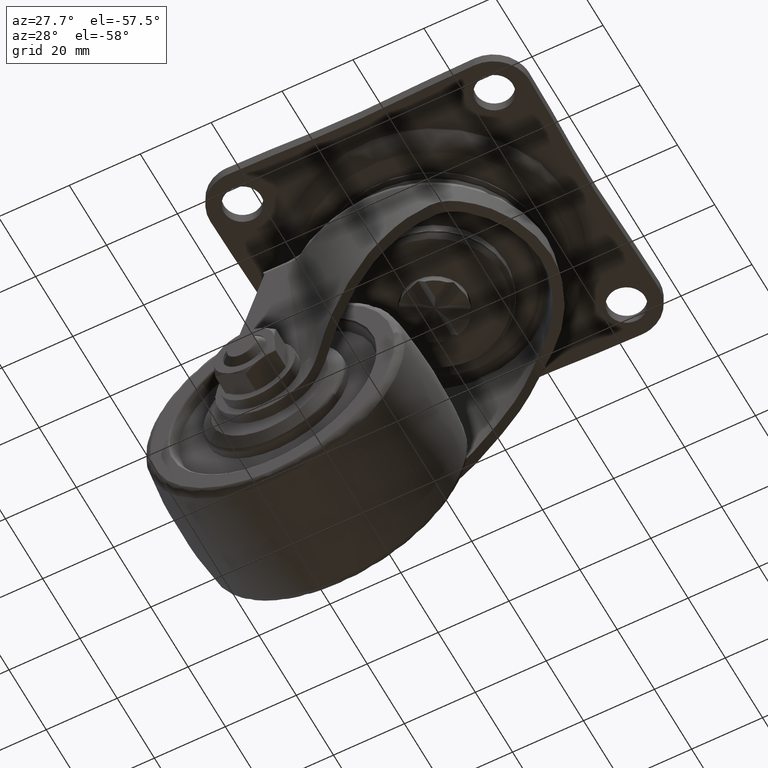
[diagram: clean part render]
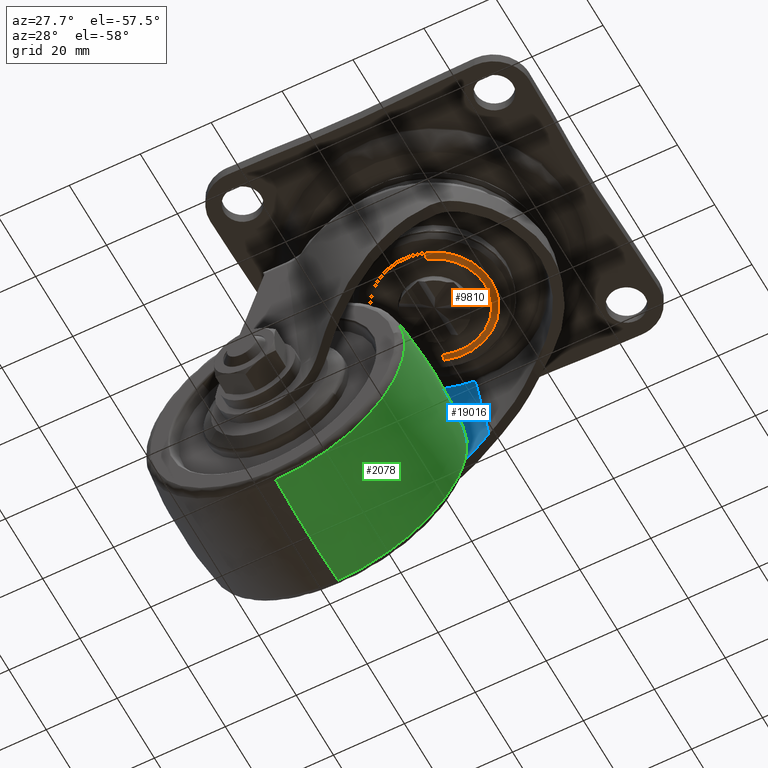
[diagram: same view with three faces highlighted in distinct colors, each labeled with its STEP entity id]
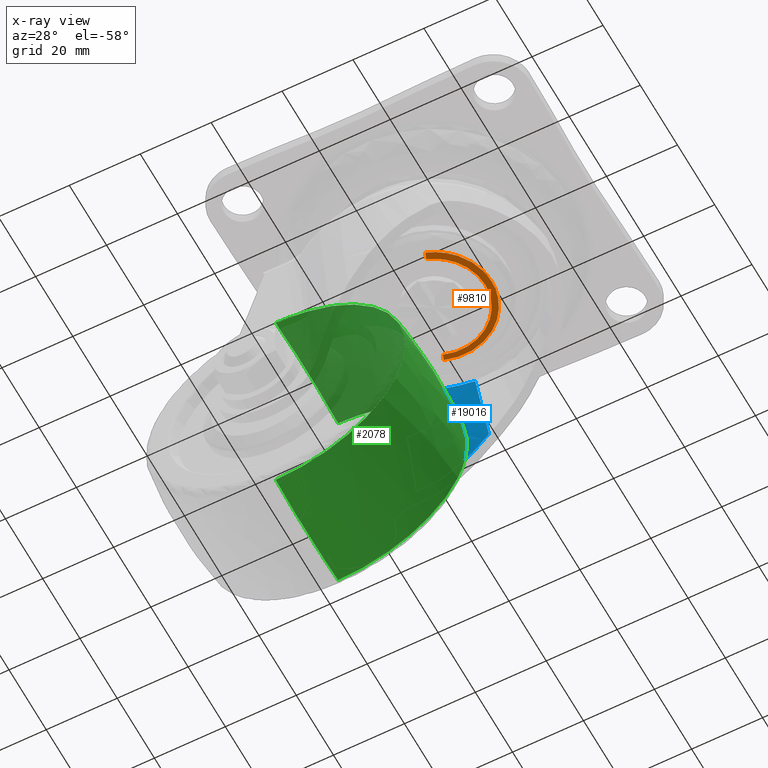
[diagram: x-ray of the same camera — body ghosted, the three highlighted faces saturated]
A machine part, auxiliary view with three faces highlighted in distinct colors.
The next image is the same camera in x-ray (body ghosted, the three faces saturated) — at least one of them is partly hidden behind the body in this view.
Their STEP definitions:

[orange] entity #9810 — the highlighted face is a freeform B-spline surface patch.
#9550=CARTESIAN_POINT('',(-4.747433835700864,13.451088585691821,-27.600000000000019));
#9551=VERTEX_POINT('',#9550);
#9565=CARTESIAN_POINT('',(14.264288000000020,0.0,-27.600000000000001));
#9566=VERTEX_POINT('',#9565);
#9567=CARTESIAN_POINT('',(-4.747433835700864,13.451088585691817,-27.600000000000019));
#9568=CARTESIAN_POINT('',(-2.443364364465019,14.264288000544710,-27.600000000000026));
#9569=CARTESIAN_POINT('',(-1.747151E-010,14.264288000495050,-27.600000000000019));
#9570=CARTESIAN_POINT('',(14.264287999927625,14.264288000205136,-27.600000000000009));
#9571=CARTESIAN_POINT('',(14.264288000000020,0.0,-27.600000000000001));
#9579=(BOUNDED_CURVE()B_SPLINE_CURVE(2,(#9567,#9568,#9569,#9570,#9571),.UNSPECIFIED.,.F.,.U.)B_SPLINE_CURVE_WITH_KNOTS((3,2,3),(0.193451214480088,0.250000000000000,0.500000000000000),.UNSPECIFIED.)CURVE()GEOMETRIC_REPRESENTATION_ITEM()RATIONAL_B_SPLINE_CURVE((0.897469272743701,0.933748976756325,1.0,0.707106781186548,1.0))REPRESENTATION_ITEM(''));
#9580=EDGE_CURVE('',#9551,#9566,#9579,.T.);
#9582=CARTESIAN_POINT('',(4.747433835700861,-13.451088585691821,-27.600000000000019));
#9583=VERTEX_POINT('',#9582);
#9584=CARTESIAN_POINT('',(14.264288000000020,0.0,-27.600000000000001));
#9585=CARTESIAN_POINT('',(14.264288000102351,-10.092205385565169,-27.600000000000009));
#9586=CARTESIAN_POINT('',(4.747433835700861,-13.451088585691817,-27.600000000000019));
#9594=(BOUNDED_CURVE()B_SPLINE_CURVE(2,(#9584,#9585,#9586),.UNSPECIFIED.,.F.,.U.)B_SPLINE_CURVE_WITH_KNOTS((3,3),(0.500000000000000,0.693451214480088),.UNSPECIFIED.)CURVE()GEOMETRIC_REPRESENTATION_ITEM()RATIONAL_B_SPLINE_CURVE((1.0,0.773357804430222,0.897469272743701))REPRESENTATION_ITEM(''));
#9595=EDGE_CURVE('',#9566,#9583,#9594,.T.);
#9650=CARTESIAN_POINT('',(5.351233631159203,-15.161857986778029,-27.293232872676771));
#9651=VERTEX_POINT('',#9650);
#9684=CARTESIAN_POINT('',(-5.351233631159202,15.161857986778029,-27.293232872676771));
#9685=VERTEX_POINT('',#9684);
#9699=CARTESIAN_POINT('',(-5.351233631159202,15.161857986778026,-27.293232872676771));
#9700=CARTESIAN_POINT('',(-5.057965721440269,14.330930632966949,-27.599999743155593));
#9701=CARTESIAN_POINT('',(-4.747433835700864,13.451088585691815,-27.600000000000023));
#9709=(BOUNDED_CURVE()B_SPLINE_CURVE(2,(#9699,#9700,#9701),.UNSPECIFIED.,.F.,.U.)B_SPLINE_CURVE_WITH_KNOTS((3,3),(-1.352994796676026,-0.664131268523343),.UNSPECIFIED.)CURVE()GEOMETRIC_REPRESENTATION_ITEM()RATIONAL_B_SPLINE_CURVE((0.950911154244378,0.937275360730326,0.950249593533099))REPRESENTATION_ITEM(''));
#9710=EDGE_CURVE('',#9685,#9551,#9709,.T.);
#9714=CARTESIAN_POINT('',(5.351233631159204,-15.161857986778026,-27.293232872676771));
#9715=CARTESIAN_POINT('',(5.057965721440269,-14.330930632966949,-27.599999743155593));
#9716=CARTESIAN_POINT('',(4.747433835700861,-13.451088585691828,-27.600000000000023));
#9724=(BOUNDED_CURVE()B_SPLINE_CURVE(2,(#9714,#9715,#9716),.UNSPECIFIED.,.F.,.U.)B_SPLINE_CURVE_WITH_KNOTS((3,3),(-1.352994796676026,-0.664131268523343),.UNSPECIFIED.)CURVE()GEOMETRIC_REPRESENTATION_ITEM()RATIONAL_B_SPLINE_CURVE((0.950911154244378,0.937275360730326,0.950249593533099))REPRESENTATION_ITEM(''));
#9725=EDGE_CURVE('',#9651,#9583,#9724,.T.);
#9730=CARTESIAN_POINT('',(-5.806159885467340,15.092969094500447,-27.262329317691346));
#9731=CARTESIAN_POINT('',(-5.594323256628059,15.167734818693873,-27.262329317691343));
#9732=CARTESIAN_POINT('',(9.863371670529954,20.623381285135711,-27.262329317691339));
#9733=CARTESIAN_POINT('',(15.243376477832834,5.380004807302880,-27.262329317691346));
#9734=CARTESIAN_POINT('',(20.623381285135711,-9.863371670529952,-27.262329317691339));
#9735=CARTESIAN_POINT('',(5.165686358315526,-15.319018136852565,-27.262329317691350));
#9736=CARTESIAN_POINT('',(4.953849729806269,-15.393783860929517,-27.262329317691350));
#9737=CARTESIAN_POINT('',(-5.459592228020251,14.192075036089365,-27.616346766919001));
#9738=CARTESIAN_POINT('',(-5.260400053633917,14.262378020295918,-27.616346766919005));
#9739=CARTESIAN_POINT('',(9.274630457436338,19.392378852957204,-27.616346766918987));
#9740=CARTESIAN_POINT('',(14.333504655196769,5.058874197760433,-27.616346766918998));
#9741=CARTESIAN_POINT('',(19.392378852957204,-9.274630457436336,-27.616346766918987));
#9742=CARTESIAN_POINT('',(4.857348342204608,-14.404631289985522,-27.616346766918998));
#9743=CARTESIAN_POINT('',(4.658156168128598,-14.474934274082544,-27.616346766919005));
#9744=CARTESIAN_POINT('',(-5.090484879985204,13.232589609174088,-27.599235181027730));
#9745=CARTESIAN_POINT('',(-4.904759516336077,13.298139610561476,-27.599235181027737));
#9746=CARTESIAN_POINT('',(8.647599333283909,18.081315822687348,-27.599235181027726));
#9747=CARTESIAN_POINT('',(13.364457577985631,4.716858244701722,-27.599235181027730));
#9748=CARTESIAN_POINT('',(18.081315822687348,-8.647599333283907,-27.599235181027726));
#9749=CARTESIAN_POINT('',(4.528956973363550,-13.430775545305261,-27.599235181027723));
#9750=CARTESIAN_POINT('',(4.343231610003767,-13.496325546590525,-27.599235181027730));
#9758=(BOUNDED_SURFACE()B_SPLINE_SURFACE(2,2,((#9730,#9737,#9744),(#9731,#9738,#9745),(#9732,#9739,#9746),(#9733,#9740,#9747),(#9734,#9741,#9748),(#9735,#9742,#9749),(#9736,#9743,#9750)),.UNSPECIFIED.,.F.,.F.,.U.)B_SPLINE_SURFACE_WITH_KNOTS((3,1,2,1,3),(3,3),(0.0,0.535658676491489,27.318592473378430,54.101526270265360,54.637184945907563),(0.0,2.038796778357210),.UNSPECIFIED.)GEOMETRIC_REPRESENTATION_ITEM()RATIONAL_B_SPLINE_SURFACE(((0.963497116545294,0.946844312000922,0.962760940193479),(0.957918439372434,0.941362055065320,0.957186525503752),(0.673405903844903,0.661766951633022,0.672891376615842),(0.952339762199573,0.935879798129719,0.951612110814026),(0.673405903844903,0.661766951633022,0.672891376615842),(0.957918439363589,0.941362055056628,0.957186525494914),(0.963497116527604,0.946844311983537,0.962760940175802)))REPRESENTATION_ITEM('')SURFACE());
#9759=CARTESIAN_POINT('',(16.078483549394999,0.0,-27.293232359085899));
#9760=VERTEX_POINT('',#9759);
#9761=CARTESIAN_POINT('',(12.127218447018290,-10.556903298550210,-27.293232511925108));
#9762=VERTEX_POINT('',#9761);
#9763=CARTESIAN_POINT('',(16.078483549394999,0.0,-27.293232359085899));
#9764=CARTESIAN_POINT('',(16.078483545612123,-6.017896514315798,-27.293232420644085));
#9765=CARTESIAN_POINT('',(12.127218447018283,-10.556903298550207,-27.293232511925108));
#9773=(BOUNDED_CURVE()B_SPLINE_CURVE(2,(#9763,#9764,#9765),.UNSPECIFIED.,.F.,.U.)B_SPLINE_CURVE_WITH_KNOTS((3,3),(0.500000000000000,0.614567192216151),.UNSPECIFIED.)CURVE()GEOMETRIC_REPRESENTATION_ITEM()RATIONAL_B_SPLINE_CURVE((1.0,0.865776185205568,0.854573535127446))REPRESENTATION_ITEM(''));
#9774=EDGE_CURVE('',#9760,#9762,#9773,.T.);
#9775=ORIENTED_EDGE('',*,*,#9774,.T.);
#9776=CARTESIAN_POINT('',(12.127218447018283,-10.556903298550207,-27.293232511925108));
#9777=CARTESIAN_POINT('',(9.345847459061343,-13.751996954325056,-27.293232702762182));
#9778=CARTESIAN_POINT('',(5.351233631159203,-15.161857986778033,-27.293232872676771));
#9786=(BOUNDED_CURVE()B_SPLINE_CURVE(2,(#9776,#9777,#9778),.UNSPECIFIED.,.F.,.U.)B_SPLINE_CURVE_WITH_KNOTS((3,3),(0.614567192216151,0.693451214482208),.UNSPECIFIED.)CURVE()GEOMETRIC_REPRESENTATION_ITEM()RATIONAL_B_SPLINE_CURVE((0.854573535127446,0.846860069508649,0.897469272746422))REPRESENTATION_ITEM(''));
#9787=EDGE_CURVE('',#9762,#9651,#9786,.T.);
#9788=ORIENTED_EDGE('',*,*,#9787,.T.);
#9789=ORIENTED_EDGE('',*,*,#9725,.T.);
#9790=ORIENTED_EDGE('',*,*,#9595,.F.);
#9791=ORIENTED_EDGE('',*,*,#9580,.F.);
#9792=ORIENTED_EDGE('',*,*,#9710,.F.);
#9793=CARTESIAN_POINT('',(-5.351233631159201,15.161857986778033,-27.293232872676771));
#9794=CARTESIAN_POINT('',(-2.754122360007707,16.078483707471943,-27.293232841555209));
#9795=CARTESIAN_POINT('',(-0.000000050705177,16.078483693059940,-27.293232797568098));
#9796=CARTESIAN_POINT('',(16.078483528385114,16.078483608923118,-27.293232540772660));
#9797=CARTESIAN_POINT('',(16.078483549394999,0.0,-27.293232359085899));
#9805=(BOUNDED_CURVE()B_SPLINE_CURVE(2,(#9793,#9794,#9795,#9796,#9797),.UNSPECIFIED.,.F.,.U.)B_SPLINE_CURVE_WITH_KNOTS((3,2,3),(0.193451214482208,0.250000000000000,0.500000000000000),.UNSPECIFIED.)CURVE()GEOMETRIC_REPRESENTATION_ITEM()RATIONAL_B_SPLINE_CURVE((0.897469272746422,0.933748976758810,1.0,0.707106781186547,1.0))REPRESENTATION_ITEM(''));
#9806=EDGE_CURVE('',#9685,#9760,#9805,.T.);
#9807=ORIENTED_EDGE('',*,*,#9806,.T.);
#9808=EDGE_LOOP('',(#9775,#9788,#9789,#9790,#9791,#9792,#9807));
#9809=FACE_OUTER_BOUND('',#9808,.T.);
#9810=ADVANCED_FACE('',(#9809),#9758,.T.);

[blue] entity #19016 — the highlighted face is a freeform B-spline surface patch.
#14980=CARTESIAN_POINT('',(-3.575089953283140,28.661007447844799,-19.564466420439750));
#14981=VERTEX_POINT('',#14980);
#14987=CARTESIAN_POINT('',(-0.219596969789601,29.609593689228600,-45.314520287188003));
#14988=VERTEX_POINT('',#14987);
#14989=CARTESIAN_POINT('',(-0.219596969789601,29.609593689228600,-45.314520287188003));
#14990=CARTESIAN_POINT('',(-1.322937700204926,29.293325575326129,-36.729195501701710));
#14991=CARTESIAN_POINT('',(-2.440679761526742,28.977126537302411,-28.145745830486291));
#14992=CARTESIAN_POINT('',(-3.575089953283066,28.661007447844820,-19.564466420439739));
#14993=QUASI_UNIFORM_CURVE('',3,(#14989,#14990,#14991,#14992),.UNSPECIFIED.,.F.,.U.);
#14994=EDGE_CURVE('',#14988,#14981,#14993,.T.);
#15765=CARTESIAN_POINT('',(-1.599720807978030,29.627173840747300,-46.823249044543793));
#15766=VERTEX_POINT('',#15765);
#15772=CARTESIAN_POINT('',(-17.429935018583599,23.539747381781449,-67.755045902970309));
#15773=VERTEX_POINT('',#15772);
#15774=CARTESIAN_POINT('',(-17.429935018583588,23.539747381781432,-67.755045902970295));
#15775=CARTESIAN_POINT('',(-16.822401999141690,24.062925591685421,-66.951723941359433));
#15776=CARTESIAN_POINT('',(-16.204966526784901,24.547593219102829,-66.135308275133710));
#15777=CARTESIAN_POINT('',(-14.951886815981959,25.446114687243661,-64.478400059245004));
#15778=CARTESIAN_POINT('',(-14.316237297290501,25.859947993123370,-63.637900527678291));
#15779=CARTESIAN_POINT('',(-13.027789956149940,26.620924950103419,-61.934226797371167));
#15780=CARTESIAN_POINT('',(-12.374989099746010,26.968056802170850,-61.071048586926928));
#15781=CARTESIAN_POINT('',(-11.548684312881321,27.361900523537049,-59.978451541119682));
#15782=CARTESIAN_POINT('',(-11.382907299732439,27.438662329862900,-59.759249767502368));
#15783=CARTESIAN_POINT('',(-11.050328242389391,27.588199602669260,-59.319490853689018));
#15784=CARTESIAN_POINT('',(-10.883399189595480,27.661027095514530,-59.098765773983189));
#15785=CARTESIAN_POINT('',(-10.382431373522630,27.873003851744809,-58.436351656835697));
#15786=CARTESIAN_POINT('',(-10.048010036117461,28.005756916586051,-57.994156753560077));
#15787=CARTESIAN_POINT('',(-9.043464622190310,28.379230476537121,-56.665877686219098));
#15788=CARTESIAN_POINT('',(-8.372061437367137,28.595209697584099,-55.778102197144626));
#15789=CARTESIAN_POINT('',(-7.026030484632224,28.964796334367691,-53.998287453357932));
#15790=CARTESIAN_POINT('',(-6.351402230545353,29.118394346215460,-53.106247555791512));
#15791=CARTESIAN_POINT('',(-4.999039951415642,29.365516699584521,-51.318061096597937));
#15792=CARTESIAN_POINT('',(-4.321305659734586,29.459035883630460,-50.421914182403363));
#15793=CARTESIAN_POINT('',(-2.962793575004790,29.587205036834110,-48.625596027087752));
#15794=CARTESIAN_POINT('',(-2.282015677118168,29.621852978154941,-47.725424647342898));
#15795=CARTESIAN_POINT('',(-1.599721584834276,29.627173785033449,-46.823248451039177));
#15796=B_SPLINE_CURVE_WITH_KNOTS('',3,(#15774,#15775,#15776,#15777,#15778,#15779,#15780,#15781,#15782,#15783,#15784,#15785,#15786,#15787,#15788,#15789,#15790,#15791,#15792,#15793,#15794,#15795),.UNSPECIFIED.,.F.,.U.,(4,2,2,2,2,2,2,2,2,2,4),(0.0,0.125000000000002,0.250000000000003,0.375000000000005,0.406250000000005,0.437500000000005,0.500000000000005,0.625000000000003,0.750000000000002,0.875000000000001,1.0),.UNSPECIFIED.);
#15797=EDGE_CURVE('',#15773,#15766,#15796,.T.);
#16156=CARTESIAN_POINT('',(-1.599720807978030,29.627173840747300,-46.823249044543793));
#16157=CARTESIAN_POINT('',(-1.141257313517278,29.633865395991950,-46.318749910126890));
#16158=CARTESIAN_POINT('',(-0.681215184867048,29.628061433381902,-45.815840447652221));
#16159=CARTESIAN_POINT('',(-0.219596969789593,29.609593689228600,-45.314520287188103));
#16160=QUASI_UNIFORM_CURVE('',3,(#16156,#16157,#16158,#16159),.UNSPECIFIED.,.F.,.U.);
#16161=EDGE_CURVE('',#15766,#14988,#16160,.T.);
#18209=CARTESIAN_POINT('',(-18.078648520322201,25.298978244452201,-18.424279935094699));
#18210=VERTEX_POINT('',#18209);
#18211=CARTESIAN_POINT('',(-21.924907989601099,23.030941852966400,-19.428123722989600));
#18212=VERTEX_POINT('',#18211);
#18213=CARTESIAN_POINT('',(-18.078648520322201,25.298978244452201,-18.424279935094699));
#18214=CARTESIAN_POINT('',(-18.252217608451922,25.214219199153501,-18.422162608564680));
#18215=CARTESIAN_POINT('',(-18.423497378420461,25.128366942324639,-18.431174882405841));
#18216=CARTESIAN_POINT('',(-18.762374096405068,24.954231001811358,-18.464764640648941));
#18217=CARTESIAN_POINT('',(-18.929961110473410,24.865950088171321,-18.489416541363351));
#18218=CARTESIAN_POINT('',(-19.261979689470369,24.686811178328480,-18.550339812817931));
#18219=CARTESIAN_POINT('',(-19.426407582504989,24.595954206413658,-18.586638691495072));
#18220=CARTESIAN_POINT('',(-19.752488738671410,24.411554995602369,-18.667996225882028));
#18221=CARTESIAN_POINT('',(-19.914287409794309,24.317922812657269,-18.713117339198071));
#18222=CARTESIAN_POINT('',(-20.393938579836529,24.034088900200850,-18.857552924411362));
#18223=CARTESIAN_POINT('',(-20.706720170464351,23.840603827799349,-18.965958222114111));
#18224=CARTESIAN_POINT('',(-21.168514851329899,23.542864434007718,-19.135915196976921));
#18225=CARTESIAN_POINT('',(-21.321205829208299,23.442367556247969,-19.193826283713310));
#18226=CARTESIAN_POINT('',(-21.548701690365149,23.289609711276690,-19.281424484728571));
#18227=CARTESIAN_POINT('',(-21.662064006177850,23.212727601272800,-19.325407692653620));
#18228=CARTESIAN_POINT('',(-21.774904720060530,23.135064146810301,-19.369457756089570));
#18229=CARTESIAN_POINT('',(-21.850022114977829,23.083111834031008,-19.398816321829379));
#18230=CARTESIAN_POINT('',(-21.887630099829970,23.056974543538882,-19.413530559669560));
#18231=CARTESIAN_POINT('',(-21.924907989600950,23.030941852966500,-19.428123722989952));
#18232=B_SPLINE_CURVE_WITH_KNOTS('',3,(#18213,#18214,#18215,#18216,#18217,#18218,#18219,#18220,#18221,#18222,#18223,#18224,#18225,#18226,#18227,#18228,#18229,#18230,#18231),.UNSPECIFIED.,.F.,.U.,(4,2,2,2,2,2,2,1,2,4),(0.0,0.124999999999999,0.249999999999998,0.374999999999998,0.499999999999997,0.749999999999996,0.874999999999996,0.937499999999997,0.968749999999999,1.0),.UNSPECIFIED.);
#18233=EDGE_CURVE('',#18210,#18212,#18232,.T.);
#18707=CARTESIAN_POINT('',(-11.592624137732519,27.658076881106801,-18.503401348059249));
#18708=VERTEX_POINT('',#18707);
#18709=CARTESIAN_POINT('',(-3.575089953283140,28.661007447844799,-19.564466420439750));
#18710=CARTESIAN_POINT('',(-4.246697100788269,28.656483683896820,-19.441665603541139));
#18711=CARTESIAN_POINT('',(-4.916510462934718,28.632305856232009,-19.319894103469089));
#18712=CARTESIAN_POINT('',(-6.254260595527979,28.545054176117809,-19.087905564408938));
#18713=CARTESIAN_POINT('',(-6.922152401863757,28.481984970449979,-18.977598467488431));
#18714=CARTESIAN_POINT('',(-8.257714900557795,28.316251503038949,-18.780026019490371));
#18715=CARTESIAN_POINT('',(-8.925351418236257,28.213609489229729,-18.692527046036780));
#18716=CARTESIAN_POINT('',(-9.928570053527515,28.028334456027750,-18.591973634100071));
#18717=CARTESIAN_POINT('',(-10.262387919961631,27.961504005410490,-18.563733598483282));
#18718=CARTESIAN_POINT('',(-10.928471340239451,27.817590976199629,-18.521505281002909));
#18719=CARTESIAN_POINT('',(-11.260823391377841,27.740494606609399,-18.507448903591850));
#18720=CARTESIAN_POINT('',(-11.592624137732519,27.658076881106801,-18.503401348059249));
#18721=B_SPLINE_CURVE_WITH_KNOTS('',3,(#18709,#18710,#18711,#18712,#18713,#18714,#18715,#18716,#18717,#18718,#18719,#18720),.UNSPECIFIED.,.F.,.U.,(4,2,2,2,2,4),(0.0,0.250000000000000,0.500000000000000,0.750000000000000,0.875000000000000,1.0),.UNSPECIFIED.);
#18722=EDGE_CURVE('',#14981,#18708,#18721,.T.);
#18817=CARTESIAN_POINT('',(-17.429935018583599,23.539747381781449,-67.755045902970309));
#18818=CARTESIAN_POINT('',(-18.916782713865590,23.370098513076709,-51.645006810100860));
#18819=CARTESIAN_POINT('',(-20.414206728277701,23.200492371869011,-35.535944475732492));
#18820=CARTESIAN_POINT('',(-21.924907989601060,23.030941852966411,-19.428123722989589));
#18821=QUASI_UNIFORM_CURVE('',3,(#18817,#18818,#18819,#18820),.UNSPECIFIED.,.F.,.U.);
#18822=EDGE_CURVE('',#15773,#18212,#18821,.T.);
#18955=CARTESIAN_POINT('',(-3.871473738302009,28.525805014865156,-15.894299407412056));
#18956=CARTESIAN_POINT('',(-3.865020251700303,28.527590012653455,-15.942754452609135));
#18957=CARTESIAN_POINT('',(-3.858566768168396,28.529375009592666,-15.991209474757071));
#18958=CARTESIAN_POINT('',(-1.802352070047411,29.098112331745387,-31.429991993649981));
#18959=CARTESIAN_POINT('',(0.327618053199337,29.702823070719560,-47.845298714049250));
#18960=CARTESIAN_POINT('',(2.542988447033657,30.348515509132593,-65.373083057490106));
#18961=CARTESIAN_POINT('',(2.551706741230308,30.351056545455133,-65.442061310944638));
#18962=CARTESIAN_POINT('',(2.560425029439048,30.353597580032467,-65.511039517023434));
#18963=CARTESIAN_POINT('',(-3.964704316674849,28.526260574331950,-15.906665895871818));
#18964=CARTESIAN_POINT('',(-3.958261728934576,28.528045529644423,-15.955119788033057));
#18965=CARTESIAN_POINT('',(-3.951819142727382,28.529830484532141,-16.003573668664149));
#18966=CARTESIAN_POINT('',(-1.898998572875014,29.098576014969396,-31.442579007499926));
#18967=CARTESIAN_POINT('',(0.227536271614488,29.703294964860302,-47.858108618761477));
#18968=CARTESIAN_POINT('',(2.439401485818084,30.348995703441570,-65.386118276412446));
#18969=CARTESIAN_POINT('',(2.448106366893537,30.351536883665208,-65.455100436165893));
#18970=CARTESIAN_POINT('',(2.456811244977760,30.354078063015617,-65.524082572215164));
#18971=CARTESIAN_POINT('',(-14.410412994361531,28.577302212797392,-17.292227779870444));
#18972=CARTESIAN_POINT('',(-14.405331901657865,28.579083094798360,-17.340571099129878));
#18973=CARTESIAN_POINT('',(-14.400250674826843,28.580864023809891,-17.388915694524556));
#18974=CARTESIAN_POINT('',(-12.774282861455358,29.150752624918031,-32.858950525945843));
#18975=CARTESIAN_POINT('',(-11.086334995705418,29.756640833363086,-49.306220458552417));
#18976=CARTESIAN_POINT('',(-9.329238663693056,30.403551160594041,-66.867065289114194));
#18977=CARTESIAN_POINT('',(-9.322289152294658,30.406109762880622,-66.936520383346689));
#18978=CARTESIAN_POINT('',(-9.315339372306362,30.408668464053981,-67.005978161931466));
#18979=CARTESIAN_POINT('',(-22.781230368975372,22.477693536719439,-18.627736085202621));
#18980=CARTESIAN_POINT('',(-22.776749102976549,22.478066161910455,-18.676325152947079));
#18981=CARTESIAN_POINT('',(-22.772267819063220,22.478438788591092,-18.724914414933192));
#18982=CARTESIAN_POINT('',(-21.343415667377478,22.597250371320321,-34.217543956051777));
#18983=CARTESIAN_POINT('',(-19.834585944424937,22.722909829012206,-50.686139513837908));
#18984=CARTESIAN_POINT('',(-18.234733851358911,22.856310192009051,-68.266711237317850));
#18985=CARTESIAN_POINT('',(-18.228432649543429,22.856835604710096,-68.335954344816003));
#18986=CARTESIAN_POINT('',(-18.222131411273018,22.857361020450867,-68.405197852912579));
#18994=(BOUNDED_SURFACE()B_SPLINE_SURFACE(3,2,((#18955,#18963,#18971,#18979),(#18956,#18964,#18972,#18980),(#18957,#18965,#18973,#18981),(#18958,#18966,#18974,#18982),(#18959,#18967,#18975,#18983),(#18960,#18968,#18976,#18984),(#18961,#18969,#18977,#18985),(#18962,#18970,#18978,#18986)),.UNSPECIFIED.,.F.,.F.,.U.)B_SPLINE_SURFACE_WITH_KNOTS((4,2,2,4),(3,1,3),(0.0,0.166570354880918,53.076830373806501,53.285892683291451),(0.0,0.216981860015776,22.997601776751232),.UNSPECIFIED.)GEOMETRIC_REPRESENTATION_ITEM()RATIONAL_B_SPLINE_SURFACE(((1.001010944524691,1.000505472262345,0.946931179011435,0.991584036948839),(1.001011182605877,1.000505591302938,0.946918681107211,0.991582054958318),(1.001011420687063,1.000505710343532,0.946906183202987,0.991580072967796),(1.001087284094680,1.000543642047340,0.942923787037737,0.990948521364473),(1.001168435680467,1.000584217840233,0.938663791683035,0.990272946463138),(1.001255800436902,1.000627900218451,0.934077640309989,0.989545647838756),(1.001256144279349,1.000628072139674,0.934059590542867,0.989542785401446),(1.001256488121795,1.000628244060898,0.934041540775746,0.989539922964136)))REPRESENTATION_ITEM('')SURFACE());
#18995=ORIENTED_EDGE('',*,*,#14994,.T.);
#18996=ORIENTED_EDGE('',*,*,#18722,.T.);
#18997=CARTESIAN_POINT('',(-11.592624137732519,27.658076881106780,-18.503401348059271));
#18998=CARTESIAN_POINT('',(-12.148643863446990,27.519964228765200,-18.496618600456159));
#18999=CARTESIAN_POINT('',(-12.702132667304470,27.367031755540911,-18.489866726945049));
#19000=CARTESIAN_POINT('',(-13.528508457993080,27.115045939485150,-18.479785972334490));
#19001=CARTESIAN_POINT('',(-13.803323802290681,27.027284099855049,-18.476433567677550));
#19002=CARTESIAN_POINT('',(-14.351653433585071,26.844142075483639,-18.469744629641060));
#19003=CARTESIAN_POINT('',(-14.625503215497289,26.748634288754939,-18.466404003641699));
#19004=CARTESIAN_POINT('',(-15.985292183020089,26.254088697330499,-18.449816273146450));
#19005=CARTESIAN_POINT('',(-17.045512312973571,25.803489961121581,-18.436882909072061));
#19006=CARTESIAN_POINT('',(-18.078648520322179,25.298978244452151,-18.424279935094710));
#19007=B_SPLINE_CURVE_WITH_KNOTS('',3,(#18997,#18998,#18999,#19000,#19001,#19002,#19003,#19004,#19005,#19006),.UNSPECIFIED.,.F.,.U.,(4,2,2,2,4),(0.0,0.250000000000001,0.375000000000001,0.500000000000001,1.0),.UNSPECIFIED.);
#19008=EDGE_CURVE('',#18708,#18210,#19007,.T.);
#19009=ORIENTED_EDGE('',*,*,#19008,.T.);
#19010=ORIENTED_EDGE('',*,*,#18233,.T.);
#19011=ORIENTED_EDGE('',*,*,#18822,.F.);
#19012=ORIENTED_EDGE('',*,*,#15797,.T.);
#19013=ORIENTED_EDGE('',*,*,#16161,.T.);
#19014=EDGE_LOOP('',(#18995,#18996,#19009,#19010,#19011,#19012,#19013));
#19015=FACE_OUTER_BOUND('',#19014,.T.);
#19016=ADVANCED_FACE('',(#19015),#18994,.F.);

[green] entity #2078 — the highlighted face is a freeform B-spline surface patch.
#1856=CARTESIAN_POINT('',(-36.0,-16.757817703415181,-104.915381616113090));
#1857=VERTEX_POINT('',#1856);
#1871=CARTESIAN_POINT('',(0.128236174160229,-16.757816205020440,-63.935942379738350));
#1872=VERTEX_POINT('',#1871);
#1873=CARTESIAN_POINT('',(-36.0,-16.757817703415181,-104.915381616113090));
#1874=CARTESIAN_POINT('',(0.415382461924509,-16.757817689363176,-104.915381629851950));
#1875=CARTESIAN_POINT('',(0.415382338567376,-16.757816370239649,-68.499999790680207));
#1876=CARTESIAN_POINT('',(0.415382330806402,-16.757816287247433,-66.208938233503190));
#1877=CARTESIAN_POINT('',(0.128236174160229,-16.757816205020443,-63.935942379738350));
#1885=(BOUNDED_CURVE()B_SPLINE_CURVE(2,(#1873,#1874,#1875,#1876,#1877),.UNSPECIFIED.,.F.,.U.)B_SPLINE_CURVE_WITH_KNOTS((3,2,3),(0.0,0.250000000000000,0.271678742834652),.UNSPECIFIED.)CURVE()GEOMETRIC_REPRESENTATION_ITEM()RATIONAL_B_SPLINE_CURVE((1.0,0.707106781186547,1.0,0.974601772925319,0.953608358916302))REPRESENTATION_ITEM(''));
#1886=EDGE_CURVE('',#1857,#1872,#1885,.T.);
#1948=CARTESIAN_POINT('',(-36.0,-16.757815097045871,-32.084617906602432));
#1949=VERTEX_POINT('',#1948);
#1969=CARTESIAN_POINT('',(0.128236174160229,-16.757816205020436,-63.935942379738343));
#1970=CARTESIAN_POINT('',(-3.895521669766616,-16.757815081107001,-32.084617922186055));
#1971=CARTESIAN_POINT('',(-36.0,-16.757815097045871,-32.084617906602432));
#1979=(BOUNDED_CURVE()B_SPLINE_CURVE(2,(#1969,#1970,#1971),.UNSPECIFIED.,.F.,.U.)B_SPLINE_CURVE_WITH_KNOTS((3,3),(0.271678742834652,0.500000000000000),.UNSPECIFIED.)CURVE()GEOMETRIC_REPRESENTATION_ITEM()RATIONAL_B_SPLINE_CURVE((0.953608358916302,0.732505008261229,1.0))REPRESENTATION_ITEM(''));
#1980=EDGE_CURVE('',#1872,#1949,#1979,.T.);
#1985=CARTESIAN_POINT('',(-37.011726291708541,-18.415811002544761,-104.688996830026440));
#1986=CARTESIAN_POINT('',(-37.085402416477706,-2.084840E-014,-107.324358851920110));
#1987=CARTESIAN_POINT('',(-37.011726291708534,18.415811002544721,-104.688996830026440));
#1988=CARTESIAN_POINT('',(-36.508809166168191,-18.415811002544761,-104.688996830026440));
#1989=CARTESIAN_POINT('',(-36.545861764205348,-2.085574E-014,-107.324358851920110));
#1990=CARTESIAN_POINT('',(-36.508809166168191,18.415811002544721,-104.688996830026430));
#1991=CARTESIAN_POINT('',(0.188996830026447,-18.415811002544761,-104.688996830026480));
#1992=CARTESIAN_POINT('',(2.824358851920124,-2.139110E-014,-107.324358851920120));
#1993=CARTESIAN_POINT('',(0.188996830026454,18.415811002544729,-104.688996830026480));
#1994=CARTESIAN_POINT('',(0.188996830026447,-18.415811002544757,-68.500000000000014));
#1995=CARTESIAN_POINT('',(2.824358851920124,-2.086316E-014,-68.500000000000000));
#1996=CARTESIAN_POINT('',(0.188996830026440,18.415811002544721,-68.500000000000000));
#1997=CARTESIAN_POINT('',(0.188996830026447,-18.415811002544761,-32.311003169973581));
#1998=CARTESIAN_POINT('',(2.824358851920124,-2.139110E-014,-29.675641148079887));
#1999=CARTESIAN_POINT('',(0.188996830026440,18.415811002544729,-32.311003169973567));
#2000=CARTESIAN_POINT('',(-36.508809166168184,-18.415811002544761,-32.311003169973574));
#2001=CARTESIAN_POINT('',(-36.545861764205334,-2.085574E-014,-29.675641148079880));
#2002=CARTESIAN_POINT('',(-36.508809166168191,18.415811002544721,-32.311003169973553));
#2003=CARTESIAN_POINT('',(-37.011726291708534,-18.415811002544761,-32.311003169973581));
#2004=CARTESIAN_POINT('',(-37.085402416477706,-2.084840E-014,-29.675641148079890));
#2005=CARTESIAN_POINT('',(-37.011726291708534,18.415811002544721,-32.311003169973567));
#2013=(BOUNDED_SURFACE()B_SPLINE_SURFACE(2,2,((#1985,#1988,#1991,#1994,#1997,#2000,#2003),(#1986,#1989,#1992,#1995,#1998,#2001,#2004),(#1987,#1990,#1993,#1996,#1999,#2002,#2005)),.UNSPECIFIED.,.F.,.F.,.U.)B_SPLINE_SURFACE_WITH_KNOTS((3,3),(3,1,2,1,3),(0.0,37.018280014497080),(0.0,1.242640687119287,63.374675043083570,125.506709399047910,126.749350086167100),.UNSPECIFIED.)GEOMETRIC_REPRESENTATION_ITEM()RATIONAL_B_SPLINE_SURFACE(((0.870182931651120,0.865144546409802,0.608186899102564,0.860106161168483,0.608186899102564,0.865144546409802,0.870182931651120),(0.861407450252262,0.856419875311120,0.602053553312873,0.851432300369978,0.602053553312873,0.856419875311120,0.861407450252262),(0.870182931651120,0.865144546409802,0.608186899102564,0.860106161168483,0.608186899102564,0.865144546409802,0.870182931651120)))REPRESENTATION_ITEM('')SURFACE());
#2014=CARTESIAN_POINT('',(-36.0,16.757818788893740,-104.915381475010800));
#2015=VERTEX_POINT('',#2014);
#2016=CARTESIAN_POINT('',(-35.999999999999993,-16.757817703415181,-104.915381616113110));
#2017=CARTESIAN_POINT('',(-36.0,0.000000551910277,-107.093744347665620));
#2018=CARTESIAN_POINT('',(-36.0,16.757818788893736,-104.915381475010820));
#2026=(BOUNDED_CURVE()B_SPLINE_CURVE(2,(#2016,#2017,#2018),.UNSPECIFIED.,.F.,.U.)B_SPLINE_CURVE_WITH_KNOTS((3,3),(0.421172275935619,0.578827729213364),.UNSPECIFIED.)CURVE()GEOMETRIC_REPRESENTATION_ITEM()RATIONAL_B_SPLINE_CURVE((0.859354121200675,0.852184340103623,0.859354121669001))REPRESENTATION_ITEM(''));
#2027=EDGE_CURVE('',#1857,#2015,#2026,.T.);
#2028=ORIENTED_EDGE('',*,*,#2027,.T.);
#2029=CARTESIAN_POINT('',(0.002130840387487,16.757818756770671,-73.970522197425424));
#2030=VERTEX_POINT('',#2029);
#2031=CARTESIAN_POINT('',(-36.0,16.757818788893740,-104.915381475010800));
#2032=CARTESIAN_POINT('',(-4.699939155416985,16.757818780406524,-104.915381465156470));
#2033=CARTESIAN_POINT('',(0.002130840387487,16.757818756770671,-73.970522197425424));
#2041=(BOUNDED_CURVE()B_SPLINE_CURVE(2,(#2031,#2032,#2033),.UNSPECIFIED.,.F.,.U.)B_SPLINE_CURVE_WITH_KNOTS((3,3),(0.0,0.224102415533073),.UNSPECIFIED.)CURVE()GEOMETRIC_REPRESENTATION_ITEM()RATIONAL_B_SPLINE_CURVE((1.0,0.737447688682594,0.945604234725365))REPRESENTATION_ITEM(''));
#2042=EDGE_CURVE('',#2015,#2030,#2041,.T.);
#2043=ORIENTED_EDGE('',*,*,#2042,.T.);
#2044=CARTESIAN_POINT('',(-36.0,16.757818753240411,-32.084618797315329));
#2045=VERTEX_POINT('',#2044);
#2046=CARTESIAN_POINT('',(0.002130840387487,16.757818756770671,-73.970522197425424));
#2047=CARTESIAN_POINT('',(0.415381890054299,16.757818755990378,-71.250869943879820));
#2048=CARTESIAN_POINT('',(0.415381894953356,16.757818755284859,-68.500000117838624));
#2049=CARTESIAN_POINT('',(0.415381959805977,16.757818745945418,-32.084618788845233));
#2050=CARTESIAN_POINT('',(-36.0,16.757818753240411,-32.084618797315329));
#2058=(BOUNDED_CURVE()B_SPLINE_CURVE(2,(#2046,#2047,#2048,#2049,#2050),.UNSPECIFIED.,.F.,.U.)B_SPLINE_CURVE_WITH_KNOTS((3,2,3),(0.224102415533073,0.250000000000000,0.500000000000000),.UNSPECIFIED.)CURVE()GEOMETRIC_REPRESENTATION_ITEM()RATIONAL_B_SPLINE_CURVE((0.945604234725365,0.969659092503954,1.0,0.707106781186548,1.0))REPRESENTATION_ITEM(''));
#2059=EDGE_CURVE('',#2030,#2045,#2058,.T.);
#2060=ORIENTED_EDGE('',*,*,#2059,.T.);
#2061=CARTESIAN_POINT('',(-36.0,-16.757815097045874,-32.084617906602418));
#2062=CARTESIAN_POINT('',(-36.000000000000007,0.000001859436436,-29.906255893875041));
#2063=CARTESIAN_POINT('',(-36.0,16.757818753240414,-32.084618797315336));
#2071=(BOUNDED_CURVE()B_SPLINE_CURVE(2,(#2061,#2062,#2063),.UNSPECIFIED.,.F.,.U.)B_SPLINE_CURVE_WITH_KNOTS((3,3),(0.421172288382936,0.578827729212182),.UNSPECIFIED.)CURVE()GEOMETRIC_REPRESENTATION_ITEM()RATIONAL_B_SPLINE_CURVE((0.859354120068529,0.852184340669750,0.859354121668894))REPRESENTATION_ITEM(''));
#2072=EDGE_CURVE('',#1949,#2045,#2071,.T.);
#2073=ORIENTED_EDGE('',*,*,#2072,.F.);
#2074=ORIENTED_EDGE('',*,*,#1980,.F.);
#2075=ORIENTED_EDGE('',*,*,#1886,.F.);
#2076=EDGE_LOOP('',(#2028,#2043,#2060,#2073,#2074,#2075));
#2077=FACE_OUTER_BOUND('',#2076,.T.);
#2078=ADVANCED_FACE('',(#2077),#2013,.T.);